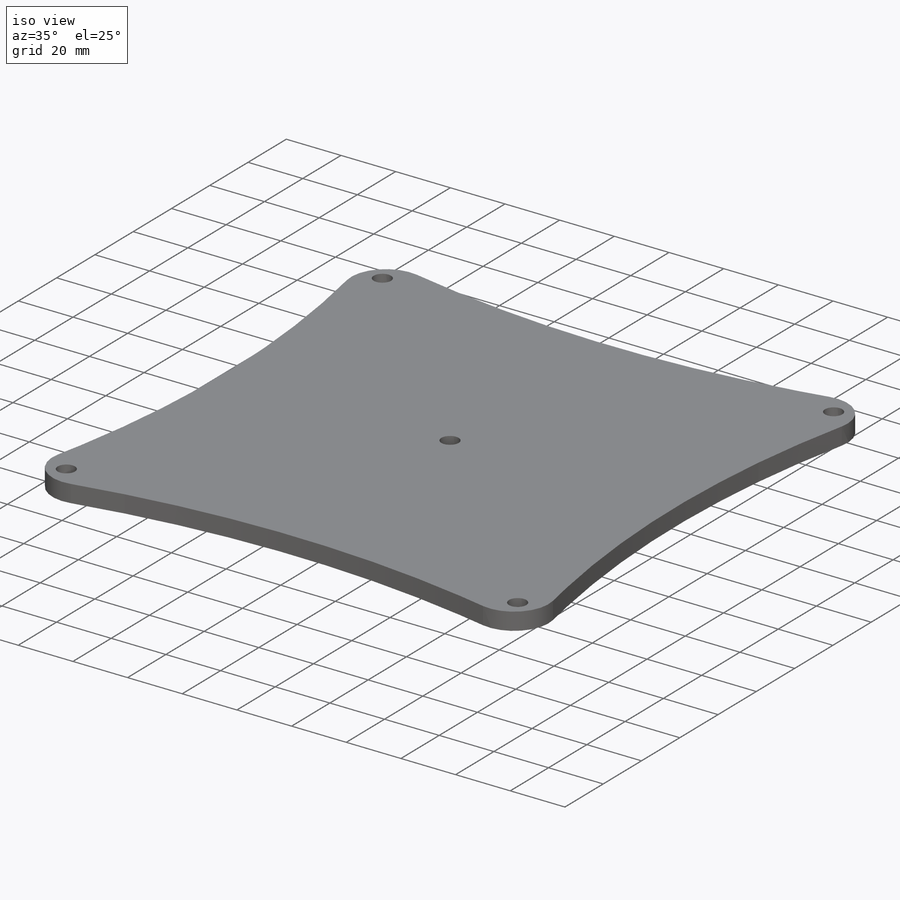
[diagram: iso view]
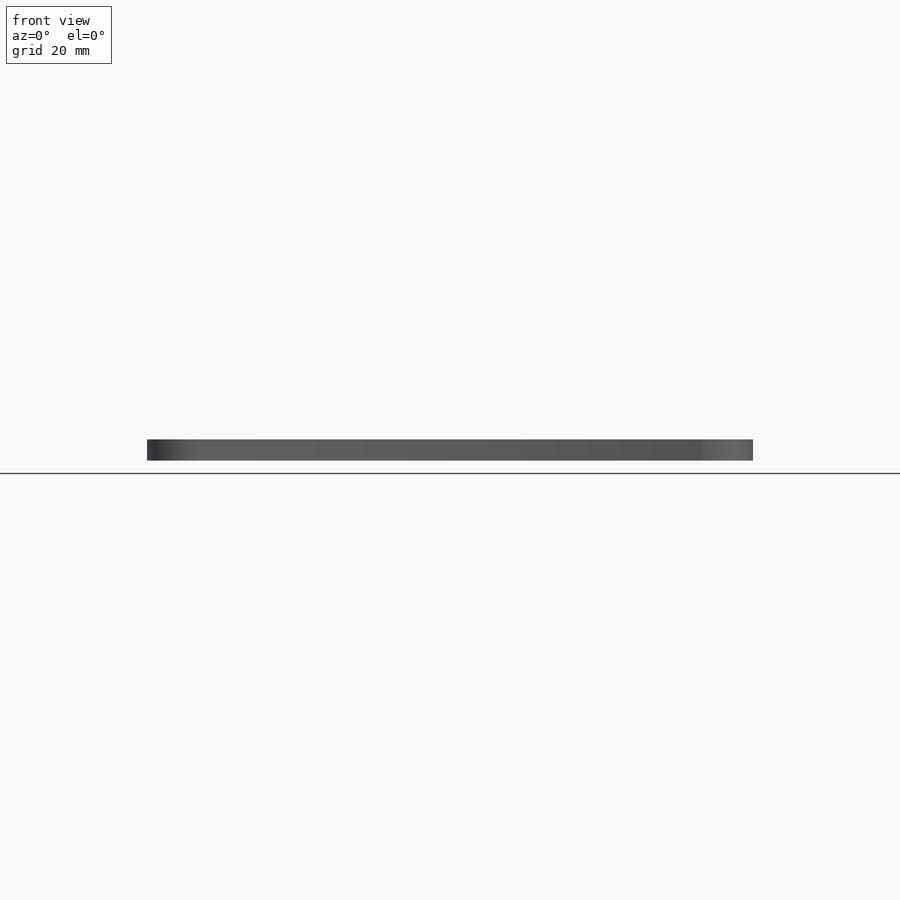
[diagram: front view]
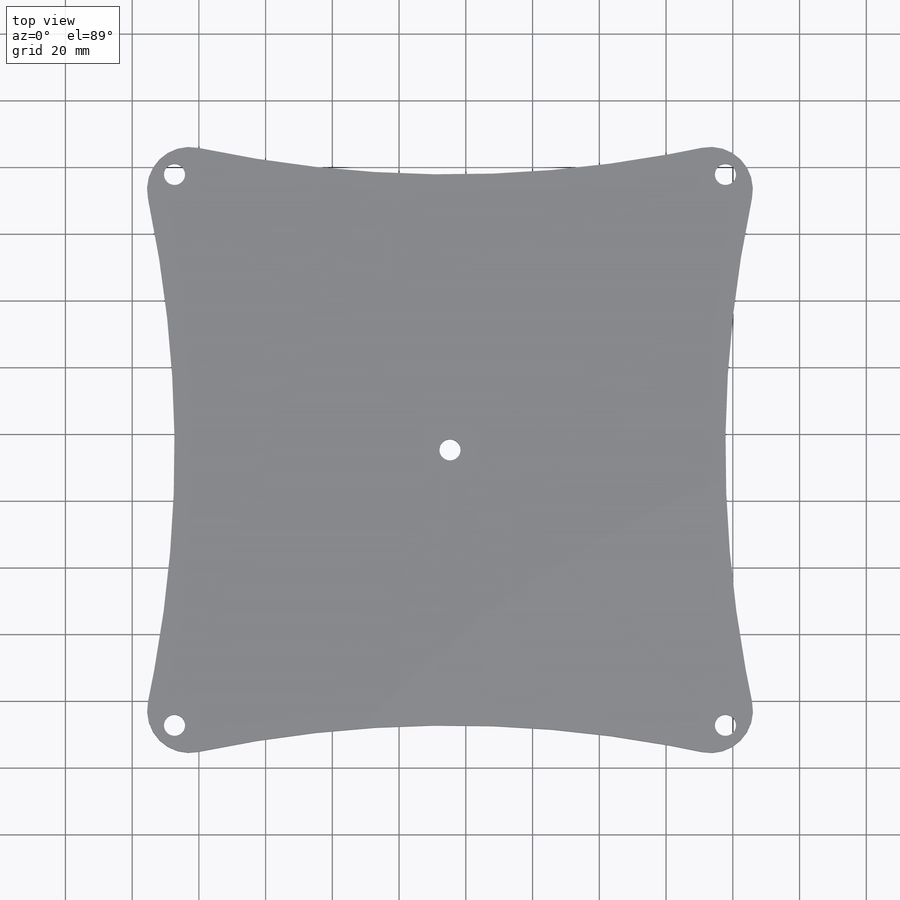
[diagram: top view]
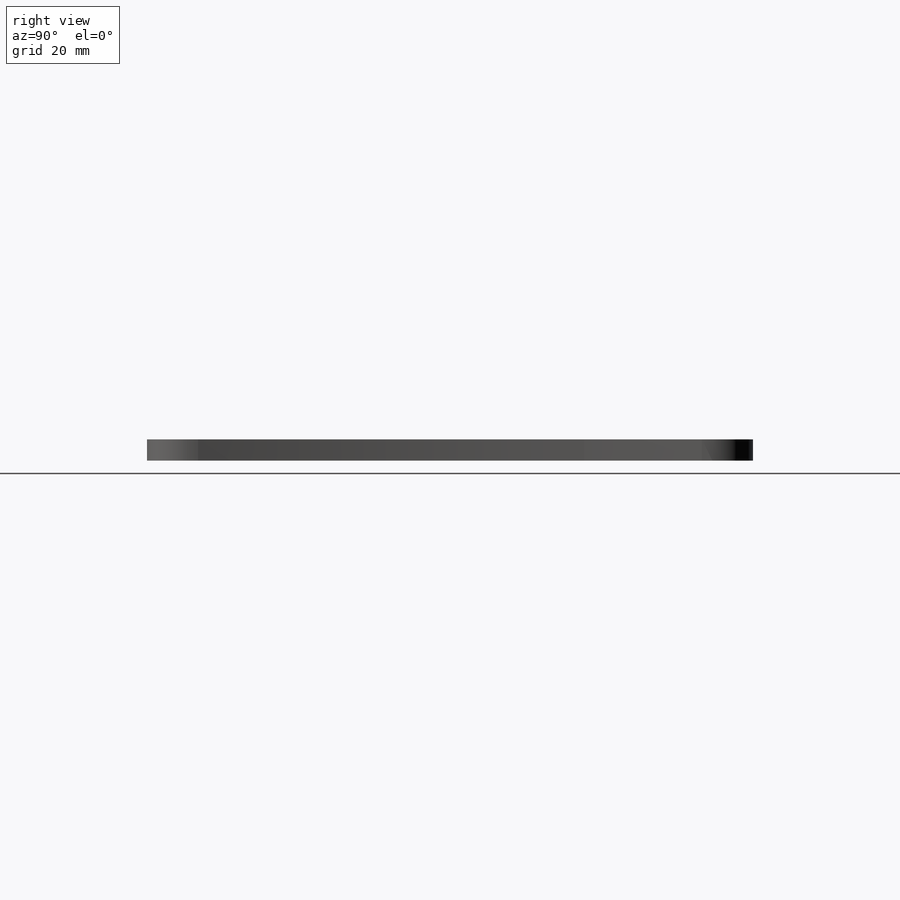
[diagram: right view]
SOLIDWORKS PART (.sldprt)
format: sldprt  version: not decoded by parser v0  size: 193,536 bytes
history: native  units: mm
features: fillet x4, material x1, sketch x1, extrude x1 (+12 scaffold rows collapsed)
feature tree (19):
  scaffold x12  (default folders/planes/origin — collapsed)
  material  "Material <not specified>"
  sketch  "Sketch1"  dims[c1.D5=~5.664997mm c1.D2=12.7mm c2.D5=12.7mm c2.D1=12.7mm c2.D3=12.7mm c2.D8=~3.347434mm c3.D1=190.5mm c3.D2=190.5mm c3.D3=12.7mm c3.D4=12.7mm c3.D6=190.5mm c3.D7=165.1mm]
  extrude  "Boss-Extrude1"  Depth=6.35mm
  fillet  "Fillet1"  Radius=12.7mm
  fillet  "Fillet2"  Radius=12.7mm
  fillet  "Fillet3"  Radius=12.7mm
  fillet  "Fillet4"  Radius=12.7mm
decode coverage: 6 of 6 modeling features carry decoded parameters
note: ~ marks probable driven/reference dimensions
note: suppression state not decoded; provenance and decode notes live in map.json
